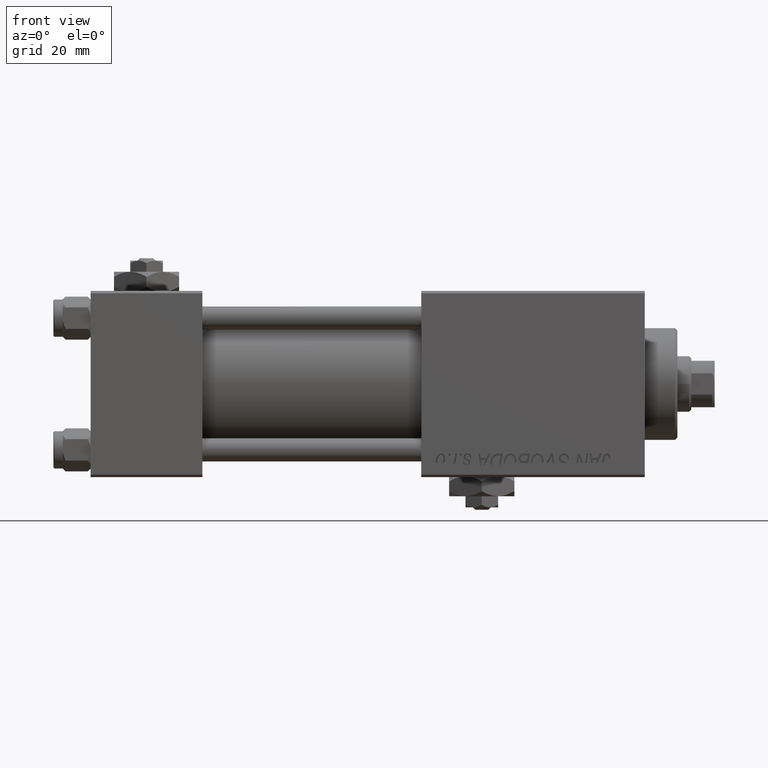
[diagram: clean part render]
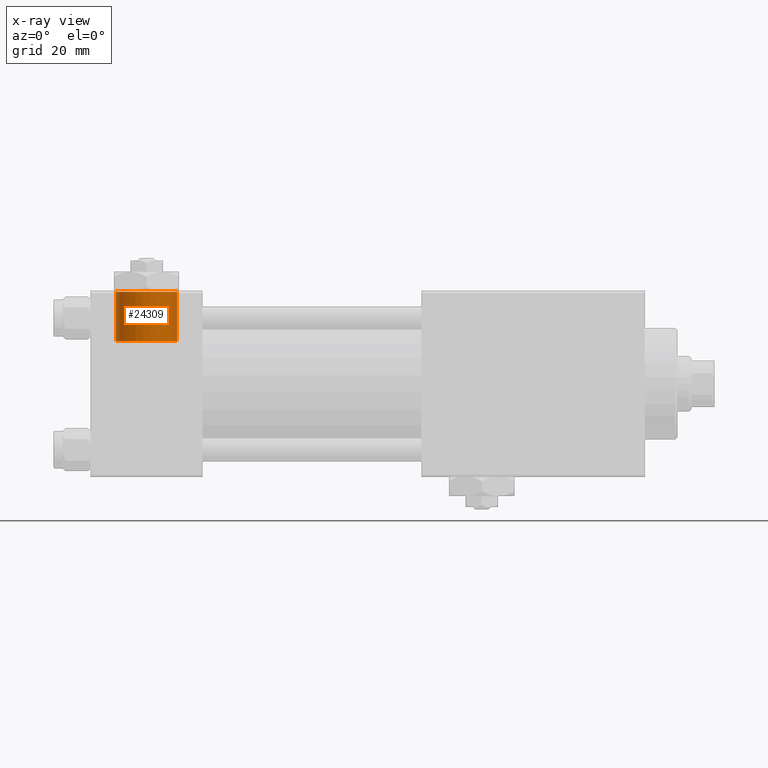
[diagram: x-ray — body ghosted, one internal face saturated and labeled with its STEP entity id]
A machine part, front view, then the same camera in x-ray: the body is ghosted and one INTERNAL B-rep face — a face not visible from any outside direction — is saturated and labeled: STEP entity #24309.
In plain terms, the highlighted cylindrical surface (edge-blend (fillet) strip) has radius 6.58 mm, axis along (0, 0, 1).
Its self-contained STEP definition (entity closure, byte-faithful):
#691 = ORIENTED_EDGE ( 'NONE', *, *, #5872, .T. ) ;
#1214 = DIRECTION ( 'NONE',  ( 1.000000000000000000, 0.000000000000000000, 0.000000000000000000 ) ) ;
#2634 = VERTEX_POINT ( 'NONE', #43577 ) ;
#4726 = CARTESIAN_POINT ( 'NONE',  ( 12.00000000000000000, 1.540743955509788682E-30, 19.79999999999999716 ) ) ;
#5872 = EDGE_CURVE ( 'NONE', #25997, #2634, #27764, .T. ) ;
#6248 = AXIS2_PLACEMENT_3D ( 'NONE', #15156, #47464, #11199 ) ;
#6834 = LINE ( 'NONE', #27702, #52042 ) ;
#8211 = CARTESIAN_POINT ( 'NONE',  ( 5.420000000000000817, 8.058175938389596335E-16, 9.165987261146492315 ) ) ;
#8846 = VERTEX_POINT ( 'NONE', #30400 ) ;
#9388 = FACE_OUTER_BOUND ( 'NONE', #22428, .T. ) ;
#9800 = VERTEX_POINT ( 'NONE', #45745 ) ;
#11199 = DIRECTION ( 'NONE',  ( 1.000000000000000000, 0.000000000000000000, 0.000000000000000000 ) ) ;
#12809 = EDGE_CURVE ( 'NONE', #9800, #25997, #51855, .T. ) ;
#13273 = AXIS2_PLACEMENT_3D ( 'NONE', #38214, #41677, #1214 ) ;
#13538 = ORIENTED_EDGE ( 'NONE', *, *, #12809, .T. ) ;
#14336 = CIRCLE ( 'NONE', #40544, 6.579999999999999183 ) ;
#15156 = CARTESIAN_POINT ( 'NONE',  ( 12.00000000000000000, 1.540743955509788682E-30, 9.165987261146492315 ) ) ;
#16979 = VECTOR ( 'NONE', #43935, 1000.000000000000000 ) ;
#18947 = DIRECTION ( 'NONE',  ( -0.000000000000000000, -0.000000000000000000, 1.000000000000000000 ) ) ;
#20259 = EDGE_CURVE ( 'NONE', #9800, #8846, #6834, .T. ) ;
#22428 = EDGE_LOOP ( 'NONE', ( #13538, #691, #43773, #26456 ) ) ;
#24309 = ADVANCED_FACE ( 'NONE', ( #9388 ), #25761, .F. ) ;
#25761 = CYLINDRICAL_SURFACE ( 'NONE', #13273, 6.579999999999999183 ) ;
#25997 = VERTEX_POINT ( 'NONE', #8211 ) ;
#26456 = ORIENTED_EDGE ( 'NONE', *, *, #20259, .F. ) ;
#27248 = EDGE_CURVE ( 'NONE', #2634, #8846, #14336, .T. ) ;
#27499 = CARTESIAN_POINT ( 'NONE',  ( 5.420000000000000817, 8.058175938389596335E-16, 9.199999999999995737 ) ) ;
#27702 = CARTESIAN_POINT ( 'NONE',  ( 18.57999999999999829, 1.540743955509788682E-30, 9.199999999999995737 ) ) ;
#27764 = LINE ( 'NONE', #27499, #16979 ) ;
#30400 = CARTESIAN_POINT ( 'NONE',  ( 18.57999999999999829, 1.540743955509788682E-30, 19.79999999999999716 ) ) ;
#38214 = CARTESIAN_POINT ( 'NONE',  ( 12.00000000000000000, 1.540743955509788682E-30, 9.199999999999995737 ) ) ;
#40177 = DIRECTION ( 'NONE',  ( 1.000000000000000000, 0.000000000000000000, 0.000000000000000000 ) ) ;
#40544 = AXIS2_PLACEMENT_3D ( 'NONE', #4726, #40698, #40177 ) ;
#40698 = DIRECTION ( 'NONE',  ( 0.000000000000000000, 0.000000000000000000, 1.000000000000000000 ) ) ;
#41677 = DIRECTION ( 'NONE',  ( -0.000000000000000000, -0.000000000000000000, 1.000000000000000000 ) ) ;
#43577 = CARTESIAN_POINT ( 'NONE',  ( 5.420000000000000817, 8.058175938389596335E-16, 19.79999999999999716 ) ) ;
#43773 = ORIENTED_EDGE ( 'NONE', *, *, #27248, .T. ) ;
#43935 = DIRECTION ( 'NONE',  ( -0.000000000000000000, -0.000000000000000000, 1.000000000000000000 ) ) ;
#45745 = CARTESIAN_POINT ( 'NONE',  ( 18.57999999999999829, 1.540743955509788682E-30, 9.165987261146492315 ) ) ;
#47464 = DIRECTION ( 'NONE',  ( -0.000000000000000000, -0.000000000000000000, -1.000000000000000000 ) ) ;
#51855 = CIRCLE ( 'NONE', #6248, 6.579999999999999183 ) ;
#52042 = VECTOR ( 'NONE', #18947, 1000.000000000000000 ) ;